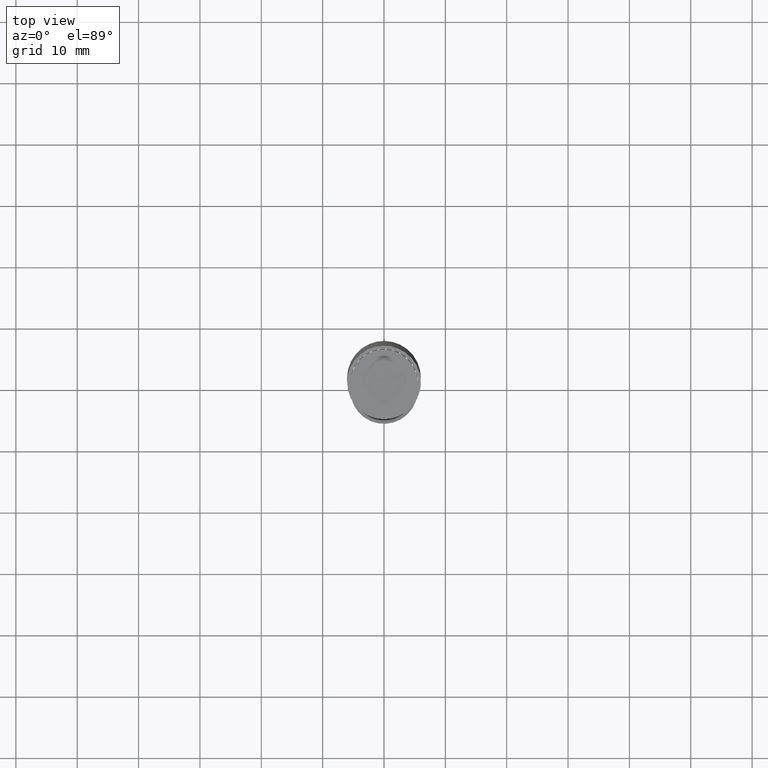
[diagram: clean part render]
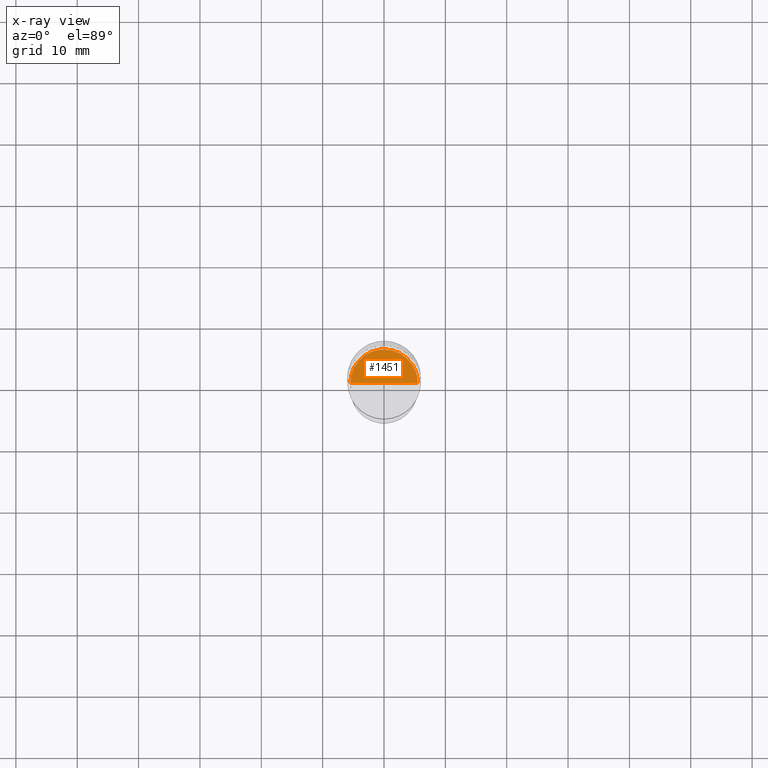
[diagram: x-ray — body ghosted, one internal face saturated and labeled with its STEP entity id]
A machine part, top view, then the same camera in x-ray: the body is ghosted and one INTERNAL B-rep face — a face not visible from any outside direction — is saturated and labeled: STEP entity #1451.
In plain terms, the highlighted face is a freeform B-spline surface patch.
Its self-contained STEP definition (entity closure, byte-faithful):
#1342=CARTESIAN_POINT('',(5.5,0.0,-7.0));
#1343=CARTESIAN_POINT('',(5.5,5.5,-7.0));
#1344=CARTESIAN_POINT('',(0.0,5.5,-7.0));
#1345=CARTESIAN_POINT('',(-5.5,5.5,-7.0));
#1346=CARTESIAN_POINT('',(-5.5,0.0,-7.0));
#1347=CARTESIAN_POINT('',(0.0,0.0,-7.0));
#1436=(
BOUNDED_SURFACE()
B_SPLINE_SURFACE(1,2,(
(#1342,#1343,#1344,#1345,#1346),
(#1347,#1347,#1347,#1347,#1347)
), .UNSPECIFIED.,.F.,.F.,.F.)
B_SPLINE_SURFACE_WITH_KNOTS((2,2),(3,2,3),(
0.0,1.0),(
0.0,0.5,1.0), .UNSPECIFIED.)
GEOMETRIC_REPRESENTATION_ITEM()
RATIONAL_B_SPLINE_SURFACE(((1.0,0.707106781187,1.0,0.707106781187,1.0),
(1.0,0.707106781187,1.0,0.707106781187,1.0)
))
REPRESENTATION_ITEM('')
SURFACE()
);
#1437=(
BOUNDED_CURVE()
B_SPLINE_CURVE(2,(#1346,#1345,#1344,#1343,#1342),.UNSPECIFIED.,.F.,.F.)
B_SPLINE_CURVE_WITH_KNOTS((3,2,3),
(0.0,0.5,1.0),.UNSPECIFIED.)
CURVE()
GEOMETRIC_REPRESENTATION_ITEM()
RATIONAL_B_SPLINE_CURVE((1.0,0.707106781187,1.0,0.707106781187,1.0))
REPRESENTATION_ITEM('')
);
#1438=(
BOUNDED_CURVE()
B_SPLINE_CURVE(1,(#1342,#1347),.UNSPECIFIED.,.F.,.F.)
B_SPLINE_CURVE_WITH_KNOTS((2,2),
(0.0,1.0),.UNSPECIFIED.)
CURVE()
GEOMETRIC_REPRESENTATION_ITEM()
RATIONAL_B_SPLINE_CURVE((1.0,1.0))
REPRESENTATION_ITEM('')
);
#1439=(
BOUNDED_CURVE()
B_SPLINE_CURVE(1,(#1347,#1346),.UNSPECIFIED.,.F.,.F.)
B_SPLINE_CURVE_WITH_KNOTS((2,2),
(0.0,1.0),.UNSPECIFIED.)
CURVE()
GEOMETRIC_REPRESENTATION_ITEM()
RATIONAL_B_SPLINE_CURVE((1.0,1.0))
REPRESENTATION_ITEM('')
);
#1440=VERTEX_POINT('',#1342);
#1441=VERTEX_POINT('',#1346);
#1442=VERTEX_POINT('',#1347);
#1443=EDGE_CURVE('',#1441,#1440,#1437,.T.);
#1444=EDGE_CURVE('',#1440,#1442,#1438,.T.);
#1445=EDGE_CURVE('',#1442,#1441,#1439,.T.);
#1446=ORIENTED_EDGE('',*,*,#1443,.T.);
#1447=ORIENTED_EDGE('',*,*,#1444,.T.);
#1448=ORIENTED_EDGE('',*,*,#1445,.T.);
#1449=EDGE_LOOP('',(#1446,#1447,#1448));
#1450=FACE_OUTER_BOUND('',#1449,.T.);
#1451=ADVANCED_FACE('',(#1450),#1436,.T.);